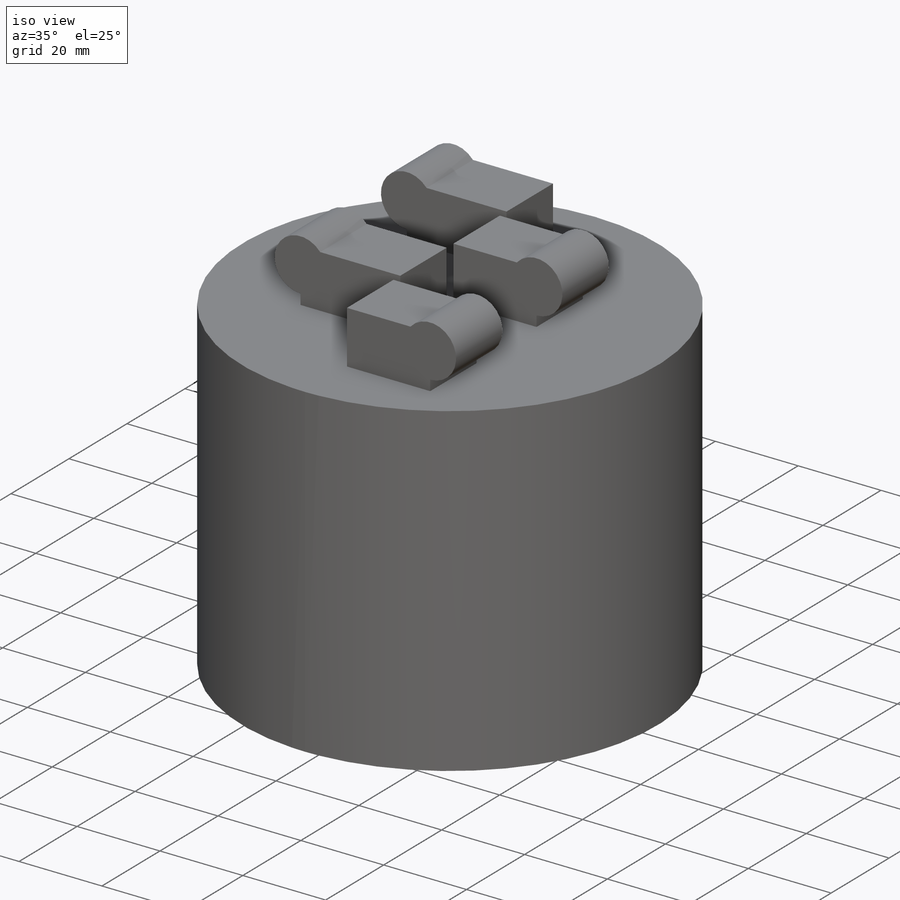
[diagram: iso view]
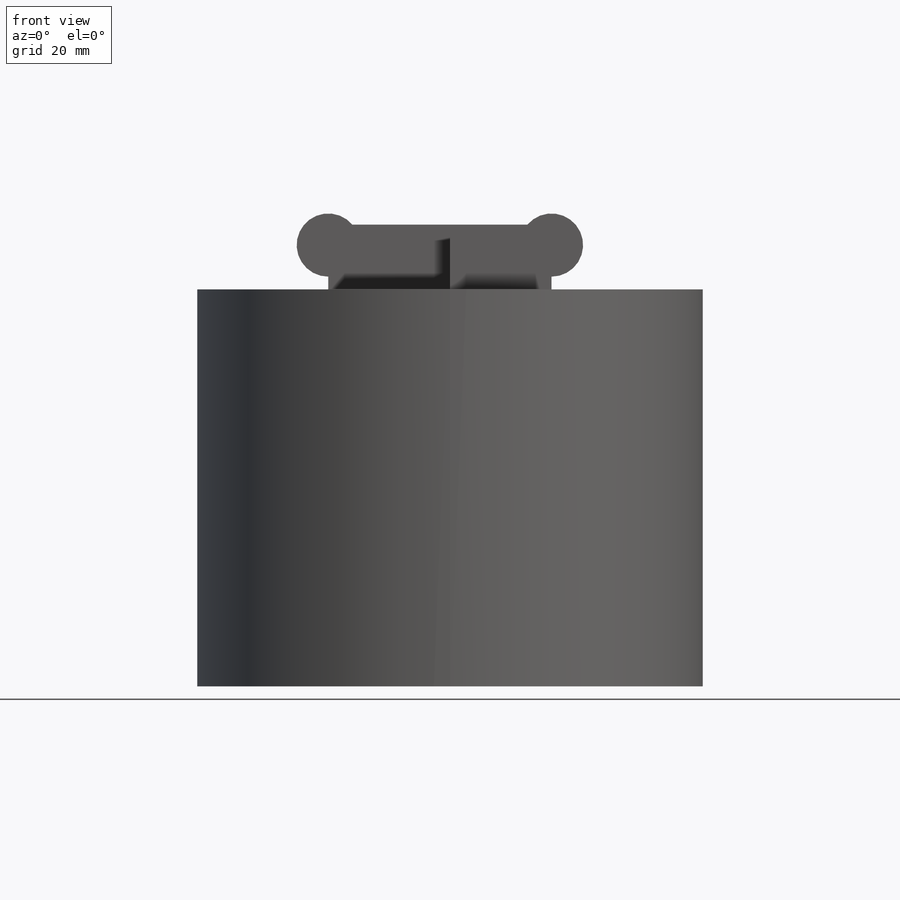
[diagram: front view]
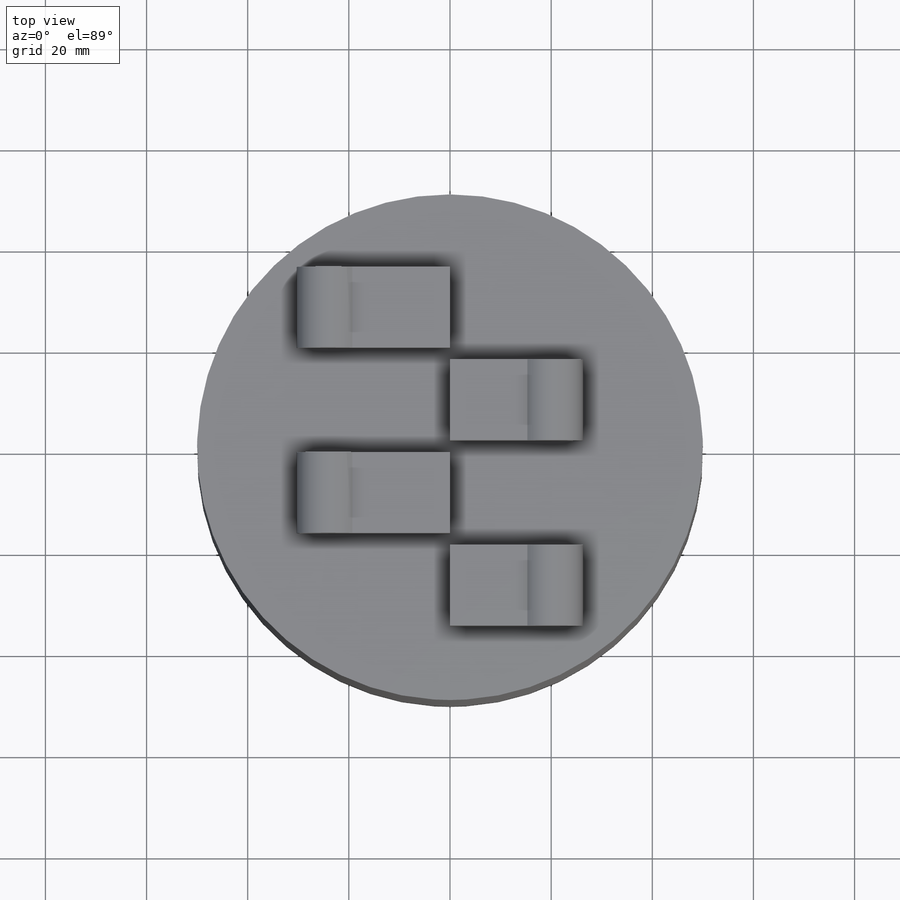
[diagram: top view]
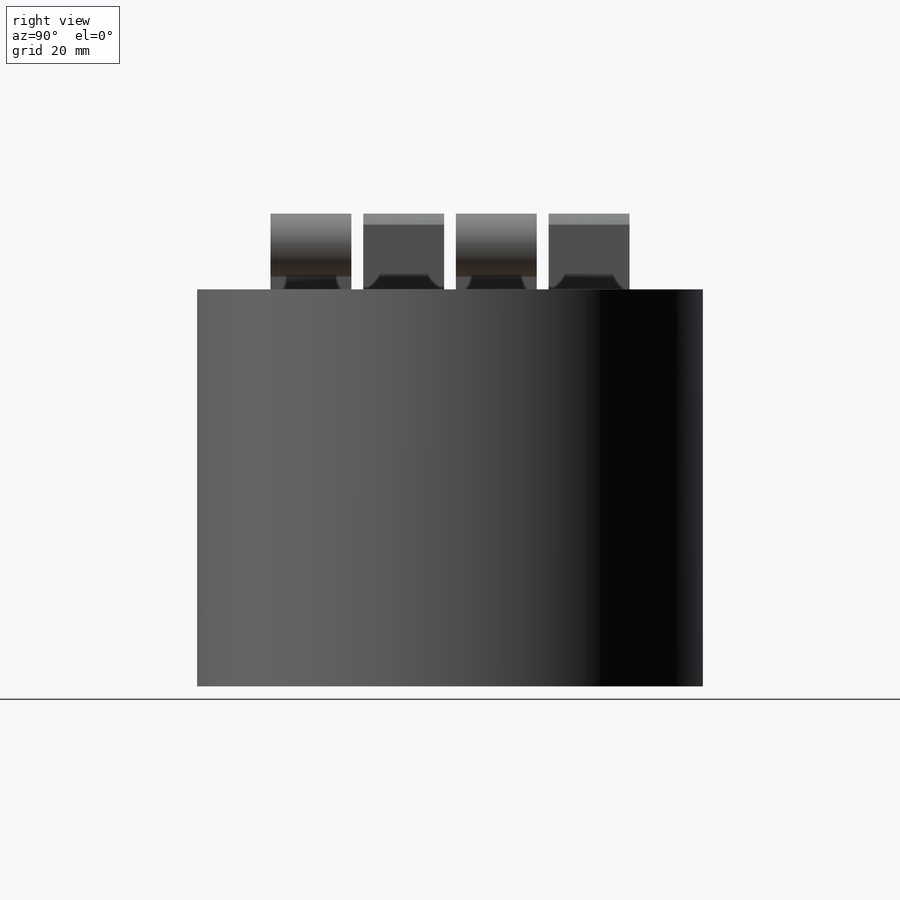
[diagram: right view]
SOLIDWORKS PART (.sldprt)
format: sldprt  version: not decoded by parser v0  size: 269,824 bytes
history: native  units: mm
features: sketch x3, extrude x3, plane x2, pattern_linear x2, material x1 (+13 scaffold rows collapsed)
feature tree (24):
  scaffold x13  (default folders/planes/origin — collapsed)
  material  "Material <not specified>"
  sketch  "Sketch1"  dims[D1=100.0mm]
  extrude  "Boss-Extrude1"  Depth=78.5mm
  plane  "Plane1"  Offset=9.165mm
  plane  "Plane2"  Offset=18.33mm
  sketch  "Sketch2"  dims[c1.D5=12.5mm c1.D6=3.0mm c1.D1=8.75mm c1.D2=14.75mm c1.D3=18.8mm c1.D4=12.8mm c2.D5=~36.97933mm c2.D4=24.07mm c2.D6=~1.239794mm]
  extrude  "Boss-Extrude2"  Depth=16mm
  pattern_linear  "LPattern1"  Count1=2 Count2=1 Spacing1=36.66mm Spacing2=10mm
  sketch  "Sketch3"  dims[c1.D5=12.5mm c1.D6=6.25mm c1.D1=8.75mm c1.D2=14.75mm c1.D3=18.8mm c1.D4=12.8mm c2.D5=~27.23839mm c2.D4=20.07mm c2.D6=~0.047432mm]
  extrude  "Boss-Extrude3"  Depth=16mm
  pattern_linear  "LPattern2"  Count1=2 Count2=1 Spacing1=36.66mm Spacing2=10mm
decode coverage: 8 of 8 modeling features carry decoded parameters
note: ~ marks probable driven/reference dimensions
note: suppression state not decoded; provenance and decode notes live in map.json
